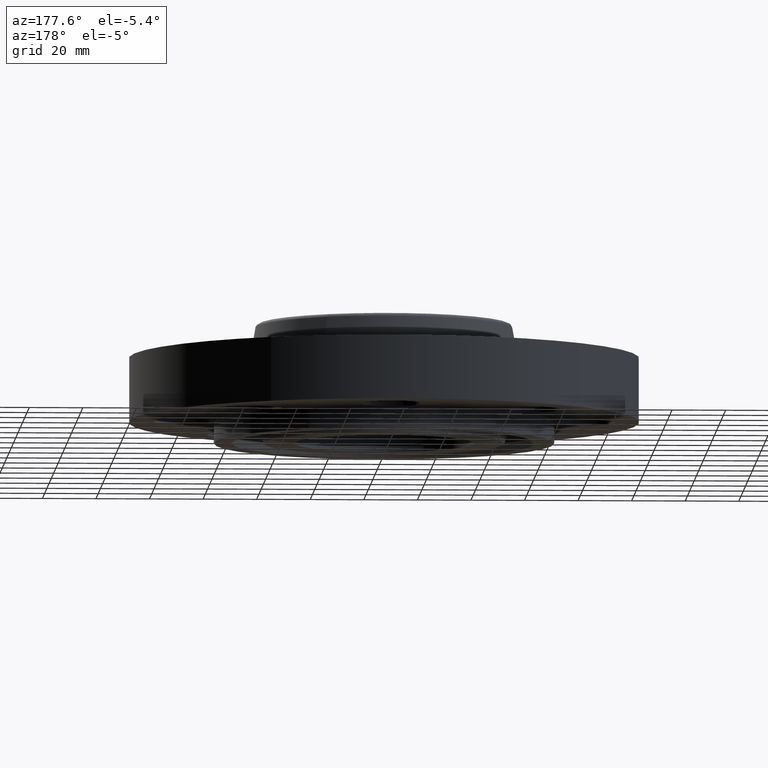
[diagram: clean part render]
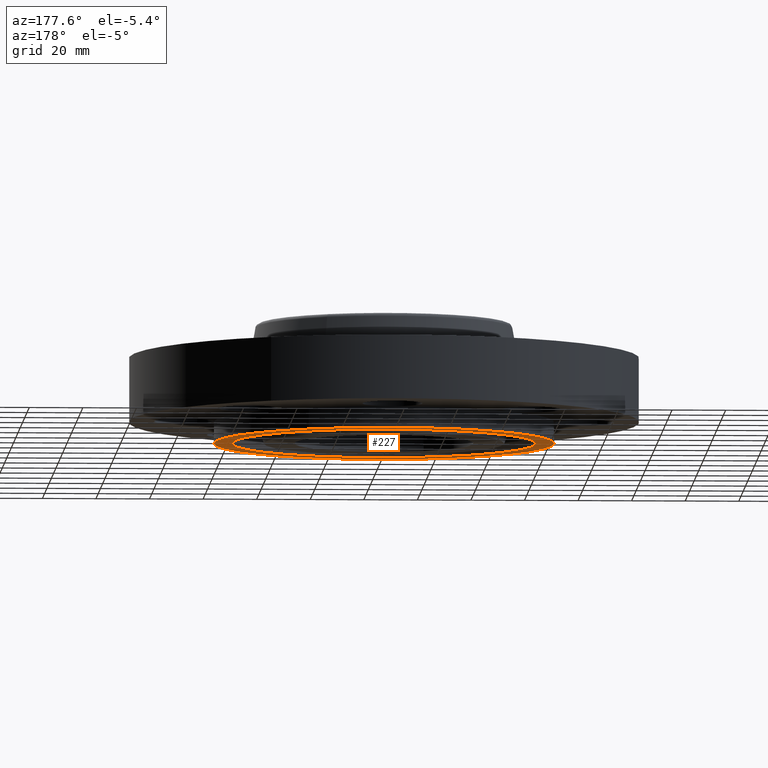
[diagram: same view with one face highlighted and labeled with its STEP entity id]
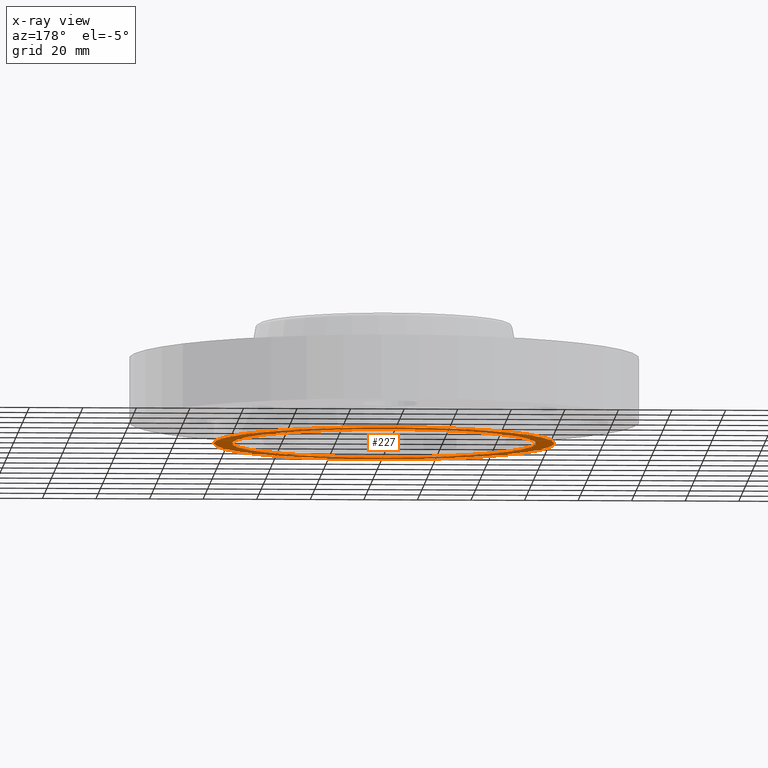
[diagram: x-ray of the same camera — body ghosted, the highlighted face saturated]
A machine part, auxiliary view. The second image highlights one B-rep face of the part: STEP entity #227.
The next image is the same camera in x-ray: the body ghosted, the highlighted face saturated — about 0% of this face is hidden behind the body in this view.
In plain terms, the highlighted planar face has unit normal (0, 0, -1).
Its self-contained STEP definition (entity closure, byte-faithful):
#123=AXIS2_PLACEMENT_3D('Plane Axis2P3D',#120,#121,#122) ;
#193=AXIS2_PLACEMENT_3D('Circle Axis2P3D',#191,#192,$) ;
#202=AXIS2_PLACEMENT_3D('Circle Axis2P3D',#200,#201,$) ;
#211=AXIS2_PLACEMENT_3D('Circle Axis2P3D',#209,#210,$) ;
#220=AXIS2_PLACEMENT_3D('Circle Axis2P3D',#218,#219,$) ;
#120=CARTESIAN_POINT('Axis2P3D Location',(0.,1.31750000001,-0.313000000001)) ;
#191=CARTESIAN_POINT('Axis2P3D Location',(0.,0.,-0.313000000001)) ;
#195=CARTESIAN_POINT('Vertex',(-1.19856384652,-2.19395640473,-0.313000000001)) ;
#197=CARTESIAN_POINT('Vertex',(1.19856384652,2.19395640473,-0.313000000001)) ;
#200=CARTESIAN_POINT('Axis2P3D Location',(0.,0.,-0.313000000001)) ;
#209=CARTESIAN_POINT('Axis2P3D Location',(0.,-2.79741234551E-016,-0.313000000001)) ;
#213=CARTESIAN_POINT('Vertex',(1.07127636602,-1.96095823455,-0.313000000001)) ;
#215=CARTESIAN_POINT('Vertex',(-1.07127636602,1.96095823455,-0.313000000001)) ;
#218=CARTESIAN_POINT('Axis2P3D Location',(1.39870617276E-016,0.,-0.313000000001)) ;
#121=DIRECTION('Axis2P3D Direction',(0.,0.,-0.0393700787402)) ;
#122=DIRECTION('Axis2P3D XDirection',(0.0393700787402,0.,0.)) ;
#192=DIRECTION('Axis2P3D Direction',(0.,0.,-0.0393700787402)) ;
#201=DIRECTION('Axis2P3D Direction',(0.,0.,-0.0393700787402)) ;
#210=DIRECTION('Axis2P3D Direction',(0.,0.,-0.0393700787402)) ;
#219=DIRECTION('Axis2P3D Direction',(0.,0.,-0.0393700787402)) ;
#206=ORIENTED_EDGE('',*,*,#199,.T.) ;
#207=ORIENTED_EDGE('',*,*,#204,.T.) ;
#224=ORIENTED_EDGE('',*,*,#217,.F.) ;
#225=ORIENTED_EDGE('',*,*,#222,.F.) ;
#226=FACE_BOUND('',#223,.T.) ;
#227=ADVANCED_FACE('PartBody',(#208,#226),#124,.T.) ;
#194=CIRCLE('generated circle',#193,2.50000000001) ;
#203=CIRCLE('generated circle',#202,2.50000000001) ;
#212=CIRCLE('generated circle',#211,2.23450000001) ;
#221=CIRCLE('generated circle',#220,2.23450000001) ;
#199=EDGE_CURVE('',#196,#198,#194,.T.) ;
#204=EDGE_CURVE('',#198,#196,#203,.T.) ;
#217=EDGE_CURVE('',#214,#216,#212,.T.) ;
#222=EDGE_CURVE('',#216,#214,#221,.T.) ;
#205=EDGE_LOOP('',(#206,#207)) ;
#223=EDGE_LOOP('',(#224,#225)) ;
#208=FACE_OUTER_BOUND('',#205,.T.) ;
#124=PLANE('',#123) ;
#196=VERTEX_POINT('',#195) ;
#198=VERTEX_POINT('',#197) ;
#214=VERTEX_POINT('',#213) ;
#216=VERTEX_POINT('',#215) ;